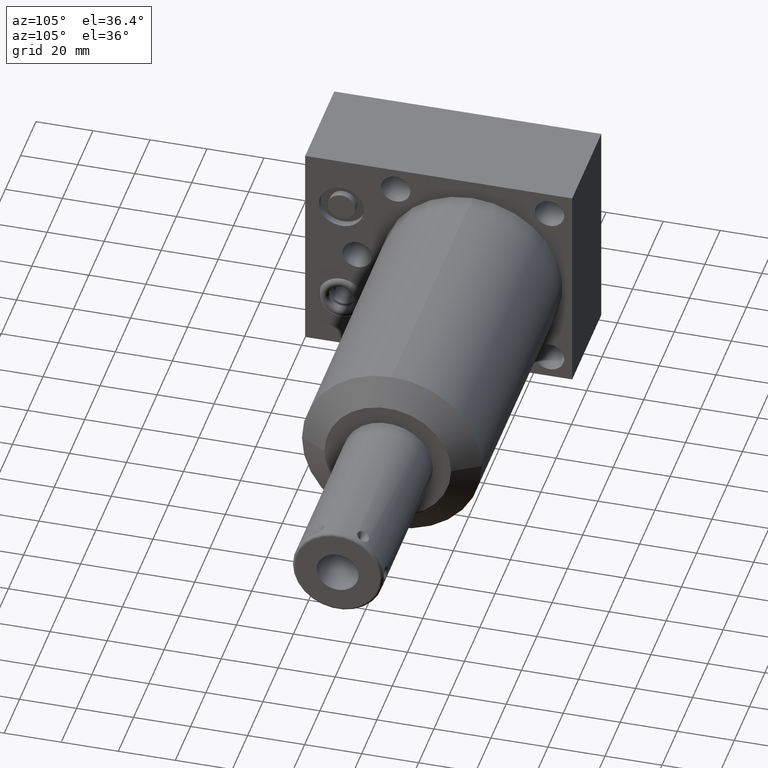
[diagram: clean part render]
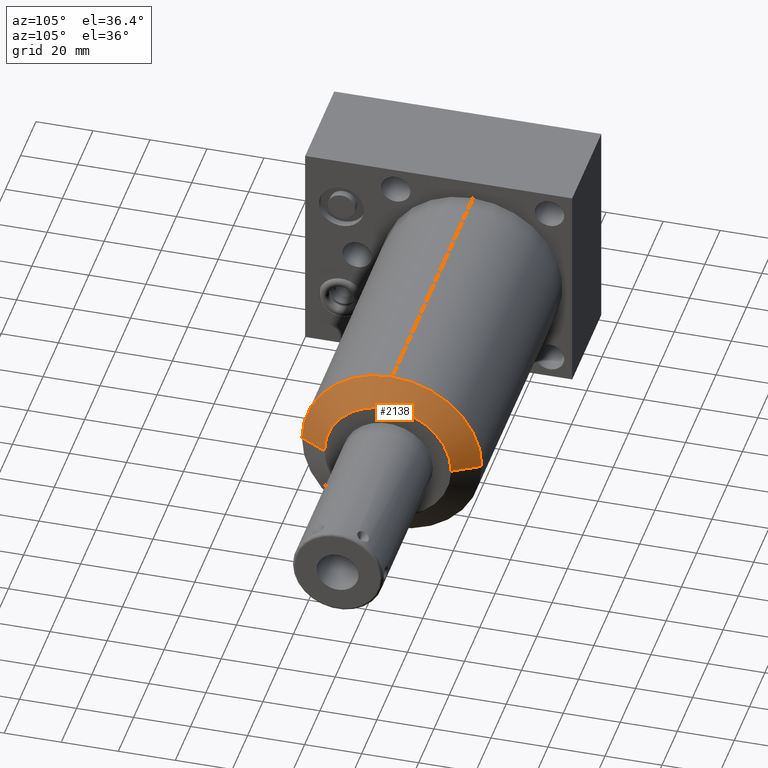
[diagram: same view with one face highlighted and labeled with its STEP entity id]
A machine part, auxiliary view. The second image highlights one B-rep face of the part: STEP entity #2138.
In plain terms, the highlighted conical surface has half-angle 60 deg.
Its self-contained STEP definition (entity closure, byte-faithful):
#272=CARTESIAN_POINT('',(4.375E0,0.E0,0.E0));
#273=DIRECTION('',(-1.E0,0.E0,0.E0));
#274=DIRECTION('',(0.E0,-1.E0,0.E0));
#275=AXIS2_PLACEMENT_3D('',#272,#273,#274);
#296=DIRECTION('',(5.E-1,8.660254037844E-1,0.E0));
#297=VECTOR('',#296,4.243524478544E-1);
#298=CARTESIAN_POINT('',(4.162823776073E0,-1.2425E0,0.E0));
#299=LINE('',#298,#297);
#303=CARTESIAN_POINT('',(4.162823776073E0,0.E0,0.E0));
#304=DIRECTION('',(1.E0,0.E0,0.E0));
#305=DIRECTION('',(0.E0,0.E0,1.E0));
#306=AXIS2_PLACEMENT_3D('',#303,#304,#305);
#311=CARTESIAN_POINT('',(4.162823776073E0,0.E0,0.E0));
#312=DIRECTION('',(1.E0,0.E0,0.E0));
#313=DIRECTION('',(0.E0,1.E0,0.E0));
#314=AXIS2_PLACEMENT_3D('',#311,#312,#313);
#319=DIRECTION('',(5.E-1,-8.660254037844E-1,0.E0));
#320=VECTOR('',#319,4.243524478544E-1);
#321=CARTESIAN_POINT('',(4.162823776073E0,1.2425E0,0.E0));
#322=LINE('',#321,#320);
#1714=CARTESIAN_POINT('',(4.375E0,8.75E-1,0.E0));
#1715=CARTESIAN_POINT('',(4.375E0,-8.75E-1,0.E0));
#1716=VERTEX_POINT('',#1714);
#1717=VERTEX_POINT('',#1715);
#1718=CARTESIAN_POINT('',(4.162823776073E0,-1.2425E0,0.E0));
#1720=VERTEX_POINT('',#1718);
#1722=CARTESIAN_POINT('',(4.162823776073E0,0.E0,1.2425E0));
#1723=VERTEX_POINT('',#1722);
#1724=CARTESIAN_POINT('',(4.162823776073E0,1.2425E0,0.E0));
#1725=VERTEX_POINT('',#1724);
#2125=CARTESIAN_POINT('',(4.268911888036E0,0.E0,0.E0));
#2126=DIRECTION('',(-1.E0,0.E0,0.E0));
#2127=DIRECTION('',(0.E0,1.E0,0.E0));
#2128=AXIS2_PLACEMENT_3D('',#2125,#2126,#2127);
#2129=CONICAL_SURFACE('',#2128,1.05875E0,6.E1);
#2130=ORIENTED_EDGE('',*,*,#2114,.F.);
#2131=ORIENTED_EDGE('',*,*,#2103,.F.);
#2132=ORIENTED_EDGE('',*,*,#2086,.F.);
#2134=ORIENTED_EDGE('',*,*,#2133,.F.);
#2135=ORIENTED_EDGE('',*,*,#2098,.T.);
#2136=EDGE_LOOP('',(#2130,#2131,#2132,#2134,#2135));
#2137=FACE_OUTER_BOUND('',#2136,.F.);
#276=CIRCLE('',#275,8.75E-1);
#307=CIRCLE('',#306,1.2425E0);
#315=CIRCLE('',#314,1.2425E0);
#2086=EDGE_CURVE('',#1723,#1720,#307,.T.);
#2098=EDGE_CURVE('',#1725,#1716,#322,.T.);
#2103=EDGE_CURVE('',#1720,#1717,#299,.T.);
#2114=EDGE_CURVE('',#1717,#1716,#276,.T.);
#2133=EDGE_CURVE('',#1725,#1723,#315,.T.);
#2138=ADVANCED_FACE('',(#2137),#2129,.T.);